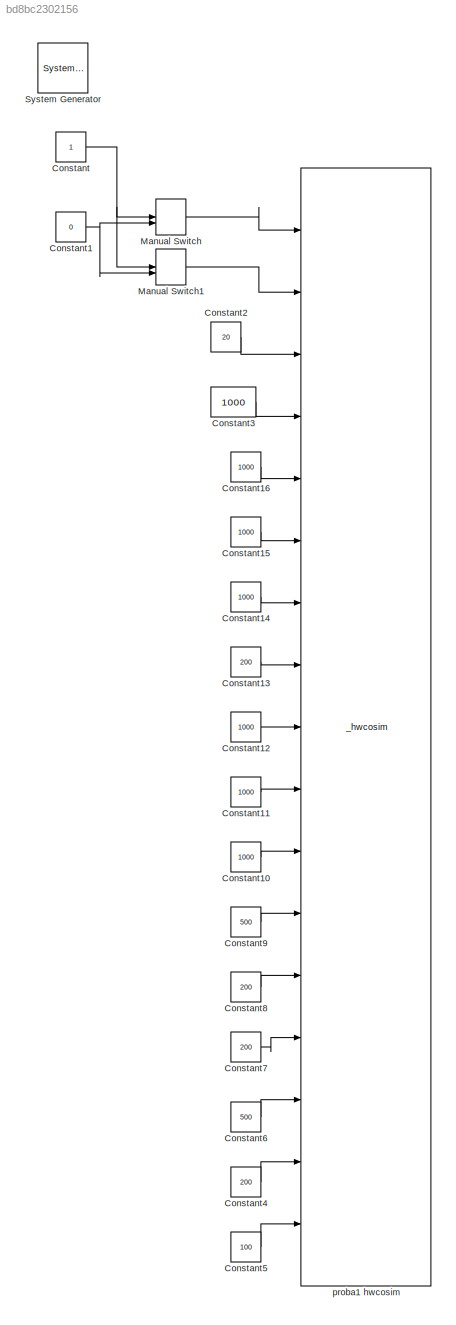
MODEL slx_bd8bc2302156
KIND model
CONFIG AbsTol = auto
CONFIG EnableMultiTasking = on
CONFIG FixedStep = auto
CONFIG MaxStep = auto
CONFIG MinStep = auto
CONFIG RelTol = 1e-3
CONFIG SampleTimeConstraint = Unconstrained
CONFIG Solver = VariableStepAuto
CONFIG SolverName = VariableStepAuto
CONFIG StartTime = 0.0
CONFIG StopTime = inf
BLOCK [Reference]  System Generator  REF=xbsIndex_r4/ System Generator
  AttributesFormatString = System\nGenerator
  Ports = []
  SourceBlock = xbsIndex_r4/ System Generator
  SourceType = Xilinx System Generator Block
  Tag = genX
  UserDataPersistent = on
BLOCK [Constant] Constant
BLOCK [Constant] Constant1
  Value = 0
BLOCK [Constant] Constant10
  Value = 1000
BLOCK [Constant] Constant11
  Value = 1000
BLOCK [Constant] Constant12
  Value = 1000
BLOCK [Constant] Constant13
  Value = 200
BLOCK [Constant] Constant14
  Value = 1000
BLOCK [Constant] Constant15
  Value = 1000
BLOCK [Constant] Constant16
  Value = 1000
BLOCK [Constant] Constant2
  Value = 20
BLOCK [Constant] Constant3
  Value = 1000
BLOCK [Constant] Constant4
  Value = 200
BLOCK [Constant] Constant5
  Value = 100
BLOCK [Constant] Constant6
  Value = 500
BLOCK [Constant] Constant7
  Value = 200
BLOCK [Constant] Constant8
  Value = 200
BLOCK [Constant] Constant9
  Value = 500
BLOCK [ManualSwitch] Manual Switch
BLOCK [ManualSwitch] Manual Switch1
  CurrentSetting = 0
BLOCK [Reference] proba1 hwcosim  REF=JTAGRuntimeCosim_r4/_hwcosim
  Ports = [17]
  SourceBlock = JTAGRuntimeCosim_r4/_hwcosim
  SourceType = Xilinx JTAG Hardware Co-simulation Block
LINE Constant10:1 -> proba1 hwcosim:11
LINE Constant11:1 -> proba1 hwcosim:10
LINE Constant12:1 -> proba1 hwcosim:9
LINE Constant13:1 -> proba1 hwcosim:8
LINE Constant14:1 -> proba1 hwcosim:7
LINE Constant15:1 -> proba1 hwcosim:6
LINE Constant16:1 -> proba1 hwcosim:5
NET Constant1:1 -> Manual Switch1:2, Manual Switch:2
LINE Constant2:1 -> proba1 hwcosim:3
LINE Constant3:1 -> proba1 hwcosim:4
LINE Constant4:1 -> proba1 hwcosim:16
LINE Constant5:1 -> proba1 hwcosim:17
LINE Constant6:1 -> proba1 hwcosim:15
LINE Constant7:1 -> proba1 hwcosim:14
LINE Constant8:1 -> proba1 hwcosim:13
LINE Constant9:1 -> proba1 hwcosim:12
NET Constant:1 -> Manual Switch1:1, Manual Switch:1
LINE Manual Switch1:1 -> proba1 hwcosim:2
LINE Manual Switch:1 -> proba1 hwcosim:1
note: NET lines group one-source signal fan-out (src -> all destinations, sorted); 1:1 wires keep LINE
